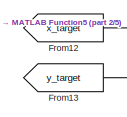
[diagram: root canvas - part 1/5, top left region]
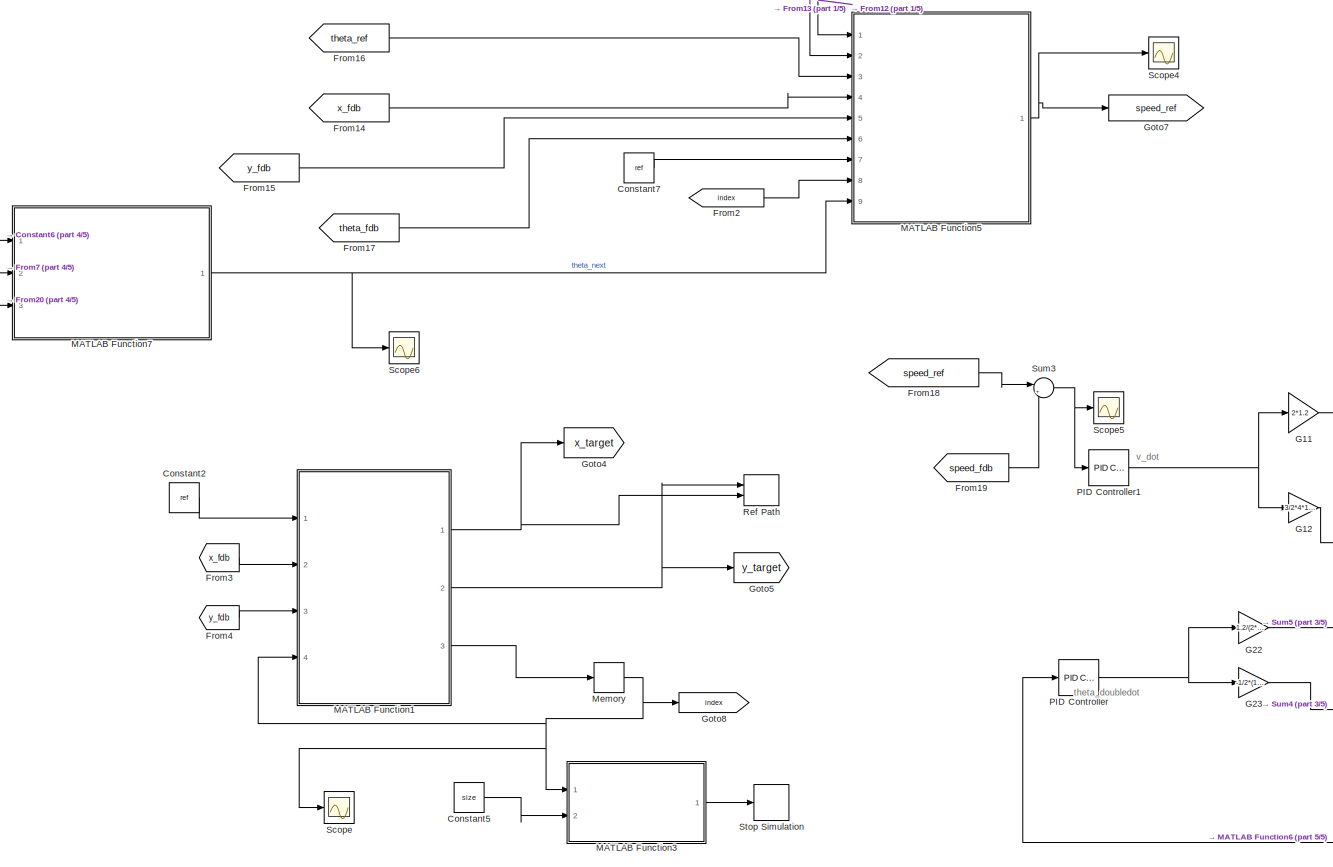
[diagram: root canvas - part 2/5, middle left region]
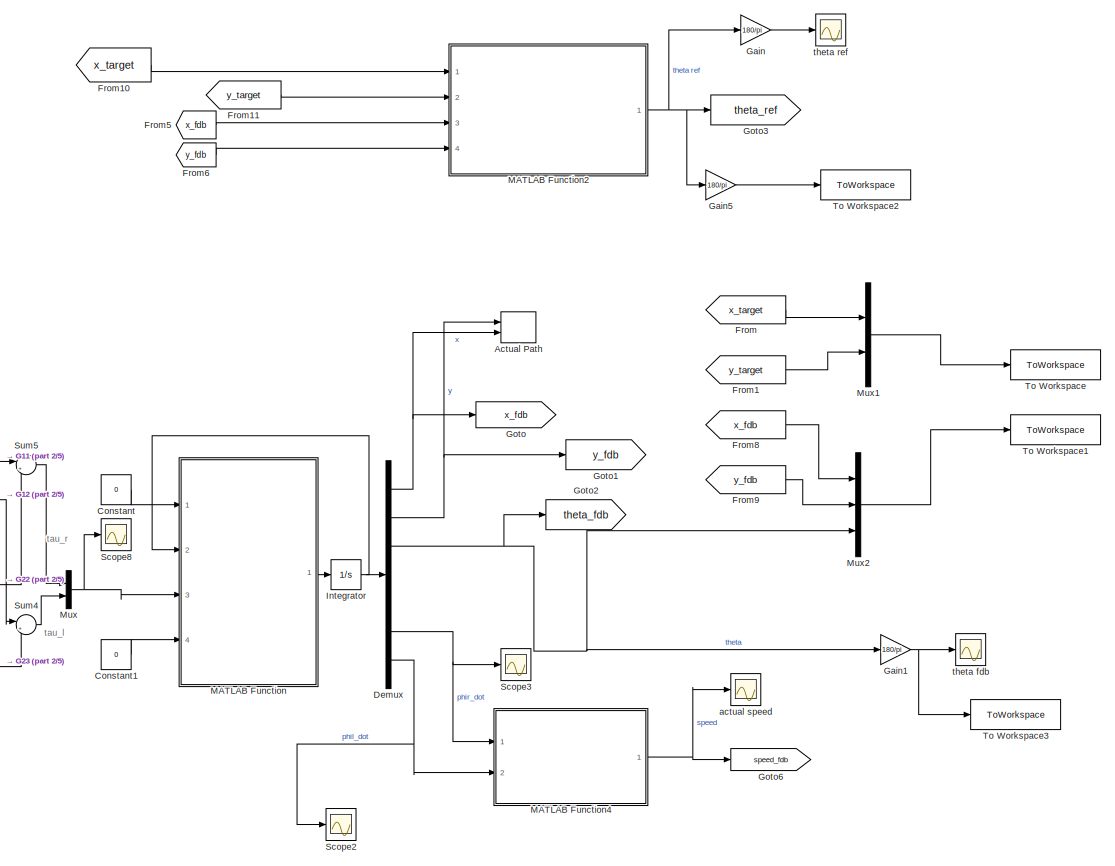
[diagram: root canvas - part 3/5, middle right region]
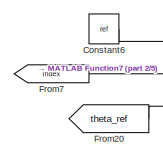
[diagram: root canvas - part 4/5, top left region]
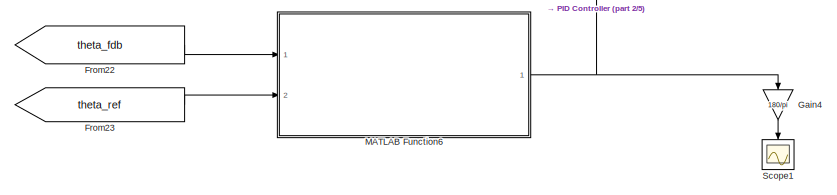
[diagram: root canvas - part 5/5, bottom center region]
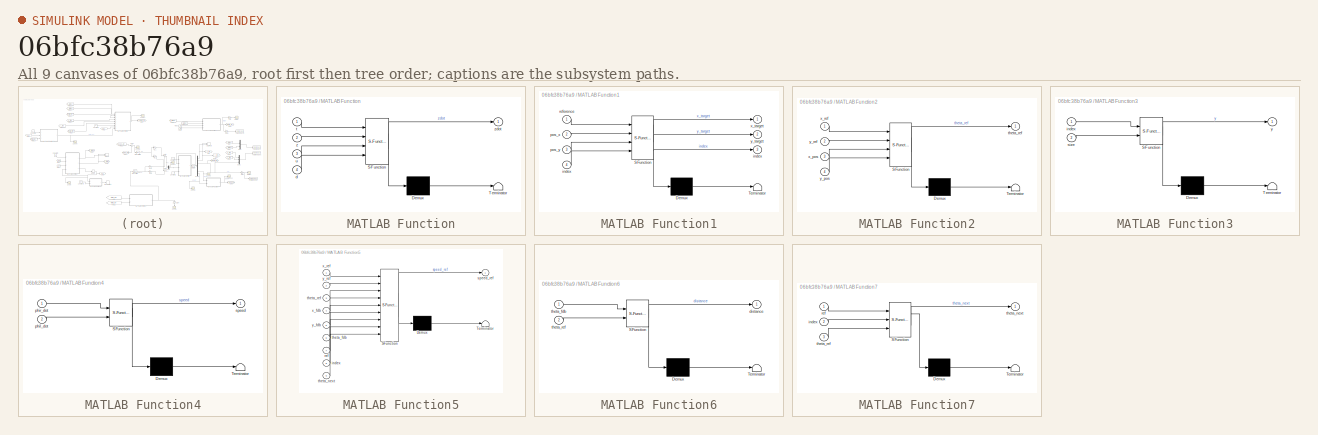
[diagram: thumbnail index - all 9 canvases of the model, root first then tree order]
MODEL slx_06bfc38b76a9
KIND model
CONFIG AbsTol = auto
CONFIG EnableMultiTasking = off
CONFIG FixedStep = auto
CONFIG MaxStep = auto
CONFIG MinStep = auto
CONFIG RelTol = 1e-3
CONFIG SampleTimeConstraint = Unconstrained
CONFIG SolverName = VariableStepAuto
CONFIG StartTime = 0.0
CONFIG StopTime = 4000
WORKSPACE source: mxarray member
WORKSPACE index = 1
BLOCK [Record] Actual Path
  CompatibilityTag = XY
  FileSettingsInternal = {"entries":[{"content":{"excelSettings":{"content":{},"type":"Streamout.ExcelSettings"}},"type":"Streamout.FileSettingStorage","uuid":"c3f9fc52-7bca-4768-af39-544f1f75d104"}],"packageUris":["http://schema.mathworks.com/mf0/streamout_blocks/R2020a"],"version":"1.0"}
  Layout = [1 1]
  Ports = [2]
  SignalsInternal = {"entries":[{"content":{"signals":[{"content":{"blockPath":["path_following_PID_v2/Actual Path"],"channel":[],"dimensions":[1],"domain":"path_following_PID_v2/Actual Path","lineColor":"#edb120","plots":[],"port":1,"sid":[""],"signalID":114,"signalName":"y"},"type":"RecordBlkView.Signal","uuid":"2cce7a5e-7ccd-4489-991f-f9e53a61cbc1"},{"content":{"blockPath":["path_following_PID_v2/Actual Path"],"ch...<+411ch>
  VisualizationBindings = {"xyplotplugin":{"info":[{"series":[],"subplotID":1}]}}
BLOCK [Constant] Constant
  Value = 0
BLOCK [Constant] Constant1
  Value = 0
BLOCK [Constant] Constant2
  Value = ref
BLOCK [Constant] Constant5
  Value = size
BLOCK [Constant] Constant6
  Value = ref
BLOCK [Constant] Constant7
  Value = ref
BLOCK [Demux] Demux
  Outputs = 7
  Ports = [1, 7]
BLOCK [From] From
  GotoTag = x_target
BLOCK [From] From1
  GotoTag = y_target
BLOCK [From] From10
  GotoTag = x_target
BLOCK [From] From11
  GotoTag = y_target
BLOCK [From] From12
  GotoTag = x_target
BLOCK [From] From13
  GotoTag = y_target
BLOCK [From] From14
  GotoTag = x_fdb
BLOCK [From] From15
  GotoTag = y_fdb
BLOCK [From] From16
  GotoTag = theta_ref
BLOCK [From] From17
  GotoTag = theta_fdb
BLOCK [From] From18
  GotoTag = speed_ref
BLOCK [From] From19
  GotoTag = speed_fdb
BLOCK [From] From2
  GotoTag = index
BLOCK [From] From20
  GotoTag = theta_ref
BLOCK [From] From22
  GotoTag = theta_fdb
BLOCK [From] From23
  GotoTag = theta_ref
BLOCK [From] From3
  GotoTag = x_fdb
BLOCK [From] From4
  GotoTag = y_fdb
BLOCK [From] From5
  GotoTag = x_fdb
BLOCK [From] From6
  GotoTag = y_fdb
BLOCK [From] From7
  GotoTag = index
BLOCK [From] From8
  GotoTag = x_fdb
BLOCK [From] From9
  GotoTag = y_fdb
BLOCK [Gain] G11
  Gain = 2*1.2
BLOCK [Gain] G12
  Gain = 3/2*4*1.2
BLOCK [Gain] G22
  Gain = 1.2/(2*0.05)
BLOCK [Gain] G23
  Gain = -1/2*(1.2)/0.05
BLOCK [Gain] Gain
  Gain = 180/pi
BLOCK [Gain] Gain1
  Gain = 180/pi
BLOCK [Gain] Gain4
  Gain = 180/pi
  NameLocation = left
BLOCK [Gain] Gain5
  Gain = 180/pi
BLOCK [Goto] Goto
  GotoTag = x_fdb
BLOCK [Goto] Goto1
  GotoTag = y_fdb
BLOCK [Goto] Goto2
  GotoTag = theta_fdb
BLOCK [Goto] Goto3
  GotoTag = theta_ref
BLOCK [Goto] Goto4
  GotoTag = x_target
BLOCK [Goto] Goto5
  GotoTag = y_target
BLOCK [Goto] Goto6
  GotoTag = speed_fdb
BLOCK [Goto] Goto7
  GotoTag = speed_ref
BLOCK [Goto] Goto8
  GotoTag = index
BLOCK [Integrator] Integrator
  InitialCondition = [0;0;0;0;0;0;0]
  Ports = [1, 1]
BLOCK [SubSystem] MATLAB Function
  ErrorFcn = Stateflow.Translate.translate
  PermitHierarchicalResolution = ExplicitOnly
  Ports = [4, 1]
  RequestExecContextInheritance = off
  SFBlockType = MATLAB Function
  TreatAsAtomicUnit = on
BLOCK [Demux] MATLAB Function/ Demux 
  Outputs = 1
  Ports = [1, 1]
BLOCK [S-Function] MATLAB Function/ SFunction 
  EnableBusSupport = on
  FunctionName = sf_sfun
  PortCounts = [4 2]
  Ports = [4, 2]
  SFcnIsStateOwnerBlock = off
  SFunctionDeploymentMode = off
  Tag = Stateflow S-Function 2
BLOCK [Terminator] MATLAB Function/ Terminator 
BLOCK [Inport] MATLAB Function/d
  Port = 4
BLOCK [Inport] MATLAB Function/t
BLOCK [Inport] MATLAB Function/u
  Port = 3
BLOCK [Inport] MATLAB Function/z
  Port = 2
BLOCK [Outport] MATLAB Function/zdot
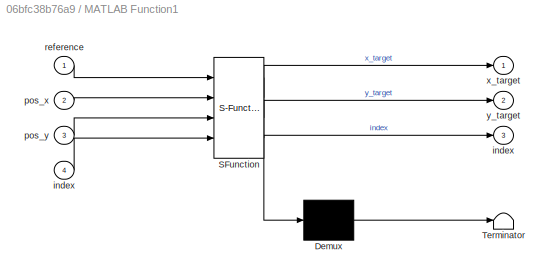
BLOCK [SubSystem] MATLAB Function1
  ErrorFcn = Stateflow.Translate.translate
  PermitHierarchicalResolution = ExplicitOnly
  Ports = [4, 3]
  RequestExecContextInheritance = off
  SFBlockType = MATLAB Function
  TreatAsAtomicUnit = on
BLOCK [Demux] MATLAB Function1/ Demux 
  Outputs = 1
  Ports = [1, 1]
BLOCK [S-Function] MATLAB Function1/ SFunction 
  EnableBusSupport = on
  FunctionName = sf_sfun
  PortCounts = [4 4]
  Ports = [4, 4]
  SFcnIsStateOwnerBlock = off
  SFunctionDeploymentMode = off
  Tag = Stateflow S-Function 1
BLOCK [Terminator] MATLAB Function1/ Terminator 
BLOCK [Outport] MATLAB Function1/index
  Port = 3
BLOCK [Inport] MATLAB Function1/index 
  Port = 4
BLOCK [Inport] MATLAB Function1/pos_x
  Port = 2
BLOCK [Inport] MATLAB Function1/pos_y
  Port = 3
BLOCK [Inport] MATLAB Function1/reference
BLOCK [Outport] MATLAB Function1/x_target
BLOCK [Outport] MATLAB Function1/y_target
  Port = 2
BLOCK [SubSystem] MATLAB Function2
  ErrorFcn = Stateflow.Translate.translate
  PermitHierarchicalResolution = ExplicitOnly
  Ports = [4, 1]
  RequestExecContextInheritance = off
  SFBlockType = MATLAB Function
  TreatAsAtomicUnit = on
BLOCK [Demux] MATLAB Function2/ Demux 
  Outputs = 1
  Ports = [1, 1]
BLOCK [S-Function] MATLAB Function2/ SFunction 
  EnableBusSupport = on
  FunctionName = sf_sfun
  PortCounts = [4 2]
  Ports = [4, 2]
  SFcnIsStateOwnerBlock = off
  SFunctionDeploymentMode = off
  Tag = Stateflow S-Function 3
BLOCK [Terminator] MATLAB Function2/ Terminator 
BLOCK [Outport] MATLAB Function2/theta_ref
BLOCK [Inport] MATLAB Function2/x_pos
  Port = 3
BLOCK [Inport] MATLAB Function2/x_ref
BLOCK [Inport] MATLAB Function2/y_pos
  Port = 4
BLOCK [Inport] MATLAB Function2/y_ref
  Port = 2
BLOCK [SubSystem] MATLAB Function3
  ErrorFcn = Stateflow.Translate.translate
  PermitHierarchicalResolution = ExplicitOnly
  Ports = [2, 1]
  RequestExecContextInheritance = off
  SFBlockType = MATLAB Function
  TreatAsAtomicUnit = on
BLOCK [Demux] MATLAB Function3/ Demux 
  Outputs = 1
  Ports = [1, 1]
BLOCK [S-Function] MATLAB Function3/ SFunction 
  EnableBusSupport = on
  FunctionName = sf_sfun
  PortCounts = [2 2]
  Ports = [2, 2]
  SFcnIsStateOwnerBlock = off
  SFunctionDeploymentMode = off
  Tag = Stateflow S-Function 4
BLOCK [Terminator] MATLAB Function3/ Terminator 
BLOCK [Inport] MATLAB Function3/index
BLOCK [Inport] MATLAB Function3/size
  Port = 2
BLOCK [Outport] MATLAB Function3/y
BLOCK [SubSystem] MATLAB Function4
  ErrorFcn = Stateflow.Translate.translate
  PermitHierarchicalResolution = ExplicitOnly
  Ports = [2, 1]
  RequestExecContextInheritance = off
  SFBlockType = MATLAB Function
  TreatAsAtomicUnit = on
BLOCK [Demux] MATLAB Function4/ Demux 
  Outputs = 1
  Ports = [1, 1]
BLOCK [S-Function] MATLAB Function4/ SFunction 
  EnableBusSupport = on
  FunctionName = sf_sfun
  PortCounts = [2 2]
  Ports = [2, 2]
  SFcnIsStateOwnerBlock = off
  SFunctionDeploymentMode = off
  Tag = Stateflow S-Function 5
BLOCK [Terminator] MATLAB Function4/ Terminator 
BLOCK [Inport] MATLAB Function4/phil_dot
  Port = 2
BLOCK [Inport] MATLAB Function4/phir_dot
BLOCK [Outport] MATLAB Function4/speed
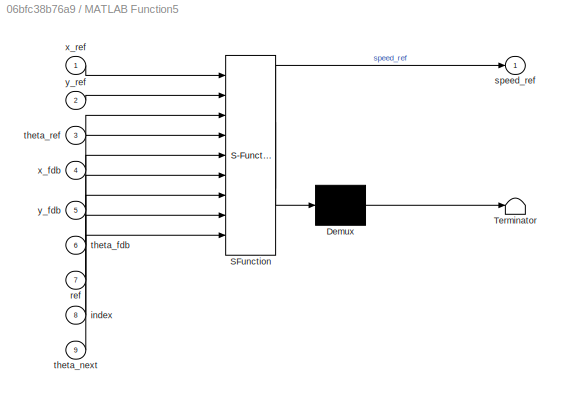
BLOCK [SubSystem] MATLAB Function5
  ErrorFcn = Stateflow.Translate.translate
  PermitHierarchicalResolution = ExplicitOnly
  Ports = [9, 1]
  RequestExecContextInheritance = off
  SFBlockType = MATLAB Function
  TreatAsAtomicUnit = on
BLOCK [Demux] MATLAB Function5/ Demux 
  Outputs = 1
  Ports = [1, 1]
BLOCK [S-Function] MATLAB Function5/ SFunction 
  EnableBusSupport = on
  FunctionName = sf_sfun
  PortCounts = [9 2]
  Ports = [9, 2]
  SFcnIsStateOwnerBlock = off
  SFunctionDeploymentMode = off
  Tag = Stateflow S-Function 6
BLOCK [Terminator] MATLAB Function5/ Terminator 
BLOCK [Inport] MATLAB Function5/index
  Port = 8
BLOCK [Inport] MATLAB Function5/ref
  Port = 7
BLOCK [Outport] MATLAB Function5/speed_ref
BLOCK [Inport] MATLAB Function5/theta_fdb
  Port = 6
BLOCK [Inport] MATLAB Function5/theta_next
  Port = 9
BLOCK [Inport] MATLAB Function5/theta_ref
  Port = 3
BLOCK [Inport] MATLAB Function5/x_fdb
  Port = 4
BLOCK [Inport] MATLAB Function5/x_ref
BLOCK [Inport] MATLAB Function5/y_fdb
  Port = 5
BLOCK [Inport] MATLAB Function5/y_ref
  Port = 2
BLOCK [SubSystem] MATLAB Function6
  ErrorFcn = Stateflow.Translate.translate
  PermitHierarchicalResolution = ExplicitOnly
  Ports = [2, 1]
  RequestExecContextInheritance = off
  SFBlockType = MATLAB Function
  TreatAsAtomicUnit = on
BLOCK [Demux] MATLAB Function6/ Demux 
  Outputs = 1
  Ports = [1, 1]
BLOCK [S-Function] MATLAB Function6/ SFunction 
  EnableBusSupport = on
  FunctionName = sf_sfun
  PortCounts = [2 2]
  Ports = [2, 2]
  SFcnIsStateOwnerBlock = off
  SFunctionDeploymentMode = off
  Tag = Stateflow S-Function 7
BLOCK [Terminator] MATLAB Function6/ Terminator 
BLOCK [Outport] MATLAB Function6/distance
BLOCK [Inport] MATLAB Function6/theta_fdb
BLOCK [Inport] MATLAB Function6/theta_ref
  Port = 2
BLOCK [SubSystem] MATLAB Function7
  ErrorFcn = Stateflow.Translate.translate
  PermitHierarchicalResolution = ExplicitOnly
  Ports = [3, 1]
  RequestExecContextInheritance = off
  SFBlockType = MATLAB Function
  TreatAsAtomicUnit = on
BLOCK [Demux] MATLAB Function7/ Demux 
  Outputs = 1
  Ports = [1, 1]
BLOCK [S-Function] MATLAB Function7/ SFunction 
  EnableBusSupport = on
  FunctionName = sf_sfun
  PortCounts = [3 2]
  Ports = [3, 2]
  SFcnIsStateOwnerBlock = off
  SFunctionDeploymentMode = off
  Tag = Stateflow S-Function 8
BLOCK [Terminator] MATLAB Function7/ Terminator 
BLOCK [Inport] MATLAB Function7/index
  Port = 2
BLOCK [Inport] MATLAB Function7/ref
BLOCK [Outport] MATLAB Function7/theta_next
BLOCK [Inport] MATLAB Function7/theta_ref
  Port = 3
BLOCK [Memory] Memory
  InitialCondition = 1
BLOCK [Mux] Mux
  DisplayOption = bar
  Inputs = 2
  Ports = [2, 1]
BLOCK [Mux] Mux1
  DisplayOption = bar
  Inputs = 2
  Ports = [2, 1]
BLOCK [Mux] Mux2
  DisplayOption = bar
  Inputs = 3
  Ports = [3, 1]
BLOCK [Reference] PID Controller  REF=slpidlib/PID Controller
  Ports = [1, 1]
  SourceBlock = slpidlib/PID Controller
  SourceProductBaseCode = SL
  SourceType = PID 1dof
BLOCK [Reference] PID Controller1  REF=slpidlib/PID Controller
  Ports = [1, 1]
  SourceBlock = slpidlib/PID Controller
  SourceProductBaseCode = SL
  SourceType = PID 1dof
BLOCK [Record] Ref Path
  CompatibilityTag = XY
  FileSettingsInternal = {"entries":[{"content":{"excelSettings":{"content":{},"type":"Streamout.ExcelSettings"}},"type":"Streamout.FileSettingStorage","uuid":"1e7c3f9c-3ccd-4c20-9498-7af259813b34"}],"packageUris":["http://schema.mathworks.com/mf0/streamout_blocks/R2020a"],"version":"1.0"}
  Layout = [1 1]
  Ports = [2]
  SignalsInternal = {"entries":[{"content":{"signals":[{"content":{"blockPath":["path_following_PID_v2/Ref Path"],"channel":[],"dimensions":[1],"domain":"path_following_PID_v2/Ref Path","lineColor":"#77ac30","plots":[],"port":1,"sid":[""],"signalID":122,"signalName":"MATLAB Function1:2"},"type":"RecordBlkView.Signal","uuid":"549e3f88-f954-4038-9d37-77bb5574b0b9"},{"content":{"blockPath":["path_following_PID_v2/Ref Pa...<+433ch>
  VisualizationBindings = {"xyplotplugin":{"info":[{"series":[],"subplotID":1}]}}
BLOCK [Scope] Scope
  Floating = off
  NumInputPorts = 1
  Ports = [1]
  ScopeSpecificationString = Simulink.scopes.TimeScopeBlockCfg('CurrentConfiguration', extmgr.ConfigurationSet(extmgr.Configuration('Core','General UI',true),extmgr.Configuration('Core','Source UI',true),extmgr.Configuration('Sources','WiredSimulink',true,'DataLoggingVariableName','ScopeData1'),extmgr.Configuration('Visuals','Time Domain',true,'SerializedDisplays',{struct('MinYLimReal','-5.125','MaxYLimReal','56.125','YLabelR...<+1455ch>
BLOCK [Scope] Scope1
  Floating = off
  NameLocation = left
  NumInputPorts = 1
  Ports = [1]
  ScopeSpecificationString = Simulink.scopes.TimeScopeBlockCfg('CurrentConfiguration', extmgr.ConfigurationSet(extmgr.Configuration('Core','General UI',true),extmgr.Configuration('Core','Source UI',true),extmgr.Configuration('Sources','WiredSimulink',true,'DataLoggingVariableName','ScopeData2'),extmgr.Configuration('Visuals','Time Domain',true,'SerializedDisplays',{struct('MinYLimReal','-353.19495','MaxYLimReal','-321.68449',...<+1453ch>
BLOCK [Scope] Scope2
  Floating = off
  NumInputPorts = 1
  Ports = [1]
  ScopeSpecificationString = Simulink.scopes.TimeScopeBlockCfg('CurrentConfiguration', extmgr.ConfigurationSet(extmgr.Configuration('Core','General UI',true),extmgr.Configuration('Core','Source UI',true),extmgr.Configuration('Sources','WiredSimulink',true,'DataLoggingVariableName','ScopeData3'),extmgr.Configuration('Visuals','Time Domain',true,'SerializedDisplays',{struct('MinYLimReal','-12.3505','MaxYLimReal','106.63712','YL...<+1430ch>
BLOCK [Scope] Scope3
  Floating = off
  NumInputPorts = 1
  Ports = [1]
  ScopeSpecificationString = Simulink.scopes.TimeScopeBlockCfg('CurrentConfiguration', extmgr.ConfigurationSet(extmgr.Configuration('Core','General UI',true),extmgr.Configuration('Core','Source UI',true),extmgr.Configuration('Sources','WiredSimulink',true,'DataLoggingVariableName','ScopeData4'),extmgr.Configuration('Visuals','Time Domain',true,'SerializedDisplays',{struct('MinYLimReal','-11.86067','MaxYLimReal','106.74603','Y...<+1435ch>
BLOCK [Scope] Scope4
  Floating = off
  NumInputPorts = 1
  Ports = [1]
  ScopeSpecificationString = Simulink.scopes.TimeScopeBlockCfg('CurrentConfiguration', extmgr.ConfigurationSet(extmgr.Configuration('Core','General UI',true),extmgr.Configuration('Core','Source UI',true),extmgr.Configuration('Sources','WiredSimulink',true,'DataLoggingVariableName','ScopeData1'),extmgr.Configuration('Visuals','Time Domain',true,'SerializedDisplays',{struct('MinYLimReal','-0.0911','MaxYLimReal','0.81993','YLabe...<+1427ch>
BLOCK [Scope] Scope5
  Floating = off
  NumInputPorts = 1
  Ports = [1]
  ScopeSpecificationString = Simulink.scopes.TimeScopeBlockCfg('CurrentConfiguration', extmgr.ConfigurationSet(extmgr.Configuration('Core','General UI',true),extmgr.Configuration('Core','Source UI',true),extmgr.Configuration('Sources','WiredSimulink',true,'DataLoggingVariableName','ScopeData2'),extmgr.Configuration('Visuals','Time Domain',true,'SerializedDisplays',{struct('MinYLimReal','-4.86555','MaxYLimReal','2.03746','YLab...<+1388ch>
BLOCK [Scope] Scope6
  Floating = off
  NumInputPorts = 1
  Ports = [1]
  ScopeSpecificationString = Simulink.scopes.TimeScopeBlockCfg('CurrentConfiguration', extmgr.ConfigurationSet(extmgr.Configuration('Core','General UI',true),extmgr.Configuration('Core','Source UI',true),extmgr.Configuration('Sources','WiredSimulink',true,'DataLoggingVariableName','ScopeData1'),extmgr.Configuration('Visuals','Time Domain',true,'SerializedDisplays',{struct('MinYLimReal','-0.77883','MaxYLimReal','7.00943','YLab...<+1394ch>
BLOCK [Scope] Scope8
  Floating = off
  NumInputPorts = 1
  Ports = [1]
  ScopeSpecificationString = Simulink.scopes.TimeScopeBlockCfg('CurrentConfiguration', extmgr.ConfigurationSet(extmgr.Configuration('Core','General UI',true),extmgr.Configuration('Core','Source UI',true),extmgr.Configuration('Sources','WiredSimulink',true,'DataLoggingVariableName','ScopeData6'),extmgr.Configuration('Visuals','Time Domain',true,'SerializedDisplays',{struct('MinYLimReal','-66.44145','MaxYLimReal','39.4137','YLa...<+1446ch>
BLOCK [Stop] Stop Simulation
BLOCK [Sum] Sum3
  Inputs = |+-
  Ports = [2, 1]
BLOCK [Sum] Sum4
  Inputs = |++
  Ports = [2, 1]
BLOCK [Sum] Sum5
  Inputs = |++
  Ports = [2, 1]
BLOCK [ToWorkspace] To Workspace
  FixptAsFi = on
  MaxDataPoints = inf
  Ports = [1]
  SampleTime = 0.3
  Save2DSignal = 2-D array (concatenate along first dimension)
  VariableName = ref_data
BLOCK [ToWorkspace] To Workspace1
  FixptAsFi = on
  MaxDataPoints = inf
  Ports = [1]
  SampleTime = 0.3
  Save2DSignal = 2-D array (concatenate along first dimension)
  VariableName = fdb_data
BLOCK [ToWorkspace] To Workspace2
  FixptAsFi = on
  MaxDataPoints = inf
  Ports = [1]
  SampleTime = -1
  SaveFormat = Timeseries
  VariableName = theta_ref
BLOCK [ToWorkspace] To Workspace3
  FixptAsFi = on
  MaxDataPoints = inf
  Ports = [1]
  SampleTime = -1
  SaveFormat = Timeseries
  VariableName = theta_fdb
BLOCK [Scope] actual speed
  Floating = off
  NumInputPorts = 1
  Ports = [1]
  ScopeSpecificationString = Simulink.scopes.TimeScopeBlockCfg('CurrentConfiguration', extmgr.ConfigurationSet(extmgr.Configuration('Core','General UI',true,'FigureColor',[1 1 1]),extmgr.Configuration('Core','Source UI',true),extmgr.Configuration('Sources','WiredSimulink',true,'DataLoggingVariableName','ScopeData2'),extmgr.Configuration('Visuals','Time Domain',true,'SerializedDisplays',{struct('MinYLimReal','-0.13222','MaxYLi...<+1584ch>
BLOCK [Scope] theta fdb
  Floating = off
  NumInputPorts = 1
  Ports = [1]
  ScopeSpecificationString = Simulink.scopes.TimeScopeBlockCfg('CurrentConfiguration', extmgr.ConfigurationSet(extmgr.Configuration('Core','General UI',true,'FigureColor',[1 1 1]),extmgr.Configuration('Core','Source UI',true),extmgr.Configuration('Sources','WiredSimulink',true,'DataLoggingVariableName','ScopeData1'),extmgr.Configuration('Visuals','Time Domain',true,'SerializedDisplays',{struct('MinYLimReal','-159.20418','MaxY...<+1540ch>
BLOCK [Scope] theta ref
  Floating = off
  NumInputPorts = 1
  Ports = [1]
  ScopeSpecificationString = Simulink.scopes.TimeScopeBlockCfg('CurrentConfiguration', extmgr.ConfigurationSet(extmgr.Configuration('Core','General UI',true,'FigureColor',[1 1 1]),extmgr.Configuration('Core','Source UI',true),extmgr.Configuration('Sources','WiredSimulink',true,'DataLoggingVariableName','ScopeData1'),extmgr.Configuration('Visuals','Time Domain',true,'SerializedDisplays',{struct('MinYLimReal','-44.40453','MaxYL...<+1589ch>
ANNOTATION (root): tau_l
ANNOTATION (root): tau_r
ANNOTATION (root): theta_doubledot
ANNOTATION (root): v_dot
LINE Constant1:1 -> MATLAB Function:4
LINE Constant2:1 -> MATLAB Function1:1
LINE Constant5:1 -> MATLAB Function3:2
LINE Constant6:1 -> MATLAB Function7:1
LINE Constant7:1 -> MATLAB Function5:7
LINE Constant:1 -> MATLAB Function:1
NET Demux:1 -> Actual Path:2, Goto:1
NET Demux:2 -> Actual Path:1, Goto1:1
NET Demux:3 -> Gain1:1, Goto2:1, Mux2:3
NET Demux:6 -> MATLAB Function4:1, Scope3:1
NET Demux:7 -> MATLAB Function4:2, Scope2:1
LINE From10:1 -> MATLAB Function2:1
LINE From11:1 -> MATLAB Function2:2
LINE From12:1 -> MATLAB Function5:1
LINE From13:1 -> MATLAB Function5:2
LINE From14:1 -> MATLAB Function5:4
LINE From15:1 -> MATLAB Function5:5
LINE From16:1 -> MATLAB Function5:3
LINE From17:1 -> MATLAB Function5:6
LINE From18:1 -> Sum3:1
LINE From19:1 -> Sum3:2
LINE From1:1 -> Mux1:2
LINE From20:1 -> MATLAB Function7:3
LINE From22:1 -> MATLAB Function6:1
LINE From23:1 -> MATLAB Function6:2
LINE From2:1 -> MATLAB Function5:8
LINE From3:1 -> MATLAB Function1:2
LINE From4:1 -> MATLAB Function1:3
LINE From5:1 -> MATLAB Function2:3
LINE From6:1 -> MATLAB Function2:4
LINE From7:1 -> MATLAB Function7:2
LINE From8:1 -> Mux2:1
LINE From9:1 -> Mux2:2
LINE From:1 -> Mux1:1
LINE G11:1 -> Sum5:1
LINE G12:1 -> Sum4:1
LINE G22:1 -> Sum5:2
LINE G23:1 -> Sum4:2
NET Gain1:1 -> To Workspace3:1, theta fdb:1
LINE Gain4:1 -> Scope1:1
LINE Gain5:1 -> To Workspace2:1
LINE Gain:1 -> theta ref:1
NET Integrator:1 -> Demux:1, MATLAB Function:2
NET MATLAB Function1:1 -> Goto4:1, Ref Path:2
NET MATLAB Function1:2 -> Goto5:1, Ref Path:1
LINE MATLAB Function1:3 -> Memory:1
NET MATLAB Function2:1 -> Gain5:1, Gain:1, Goto3:1
LINE MATLAB Function3:1 -> Stop Simulation:1
NET MATLAB Function4:1 -> Goto6:1, actual speed:1
NET MATLAB Function5:1 -> Goto7:1, Scope4:1
NET MATLAB Function6:1 -> Gain4:1, PID Controller:1
NET MATLAB Function7:1 -> MATLAB Function5:9, Scope6:1
LINE MATLAB Function:1 -> Integrator:1
NET Memory:1 -> Goto8:1, MATLAB Function1:4, MATLAB Function3:1, Scope:1
LINE Mux1:1 -> To Workspace:1
LINE Mux2:1 -> To Workspace1:1
NET Mux:1 -> MATLAB Function:3, Scope8:1
NET PID Controller1:1 -> G11:1, G12:1
NET PID Controller:1 -> G22:1, G23:1
NET Sum3:1 -> PID Controller1:1, Scope5:1
LINE Sum4:1 -> Mux:2
LINE Sum5:1 -> Mux:1
note: NET lines group one-source signal fan-out (src -> all destinations, sorted); 1:1 wires keep LINE
CHART MATLAB Function1 states=1 transitions=1
  STATE_LABEL 'eML_blk_kernel()'
  STATE_LABEL 'SCRIPT:\nfunction [x_target, y_target, index] = target_to_follow(reference, pos_x, pos_y,index)\n\ncurrent_target_x = reference(index,1);\ncurrent_target_y = reference(index,2);\n\ndistance = sqrt((current_target_x - pos_x)^2+(current_target_y - pos_y)^2);\n\nif distance <= 0.3\n    index= index + 1;\nelse\n    index = index;\nend\n\n\nx_target = reference(index,1);\ny_target = reference(index,2);\n\n\nend'
CHART MATLAB Function states=1 transitions=1
  STATE_LABEL 'eML_blk_kernel()'
  STATE_LABEL 'SCRIPT:\nfunction zdot=robot_dyn_model(t,z,u,d)\n\n%% Read parameters, states and inputs\n\n% Parameters\n% Ic      =       th(1,1);     %\n% Iw      =       th(2,1);     % \n% d       =       th(3,1);     % \n% mw      =       th(4,1);     % \n% mc      =       th(5,1);     % \n% Im      =       th(6,1);     % \n% R       =       th(7,1);     % \n% L       =       th(8,1);     % \n\n Ic      =       1;     %\n I...<+1844ch>'
CHART MATLAB Function2 states=1 transitions=1
  STATE_LABEL 'eML_blk_kernel()'
  STATE_LABEL 'SCRIPT:\nfunction theta_ref = direction (x_ref, y_ref, x_pos, y_pos)\n\nif (x_pos >= x_ref && abs(y_pos-y_ref)<=10^-3)\n    theta_ref = pi;\nelseif (abs(x_pos-x_ref)<=10^-3 && y_pos <= y_ref )\n    theta_ref = pi/2;\nelseif (x_pos < x_ref && abs(y_pos-y_ref)<=10^-3)\n    theta_ref = 0;\nelseif (abs(x_pos-x_ref)<=10^-3 && y_pos > y_ref )\n    theta_ref = 3*pi/2;\nelseif (x_pos<x_ref && y_pos<y_ref)\n    theta_...<+318ch>'
CHART MATLAB Function3 states=1 transitions=1
  STATE_LABEL 'eML_blk_kernel()'
  STATE_LABEL 'SCRIPT:\nfunction y = stop_simulation(index, size)\n\nif (index == size)\n    y = 1;\nelse \n    y=0;\n\nend\n'
CHART MATLAB Function4 states=1 transitions=1
  STATE_LABEL 'eML_blk_kernel()'
  STATE_LABEL 'SCRIPT:\nfunction speed = compute_speed(phir_dot, phil_dot)\n\nspeed = ((phir_dot*0.025)+(phil_dot*0.025))/2;\n\n'
CHART MATLAB Function5 states=1 transitions=1
  STATE_LABEL 'eML_blk_kernel()'
  STATE_LABEL 'SCRIPT:\nfunction speed_ref = speed_ref_function(x_ref, y_ref, theta_ref, x_fdb, y_fdb, theta_fdb, ref, index, theta_next)\n\nif index < length(ref)\n    x_next = ref(index+1,1);\n    y_next = ref(index+1,2);\n    \n    distance_curr = sqrt((x_ref-x_fdb)^2+(y_ref-y_fdb)^2);\n    distance_next = sqrt((x_next-x_fdb)^2+(y_next-y_fdb)^2);\n    \n    diff_curr = rem(theta_ref-theta_fdb, 2*pi);\n    diff_next = re...<+294ch>'
CHART MATLAB Function6 states=1 transitions=1
  STATE_LABEL 'eML_blk_kernel()'
  STATE_LABEL 'SCRIPT:\nfunction distance = fcn(theta_fdb,theta_ref)\n\ndistance = rem((theta_ref - theta_fdb),2*pi);\nif (distance < -pi)\n    distance = (distance + 2*pi);\nelseif (distance > pi)\n    distance = (distance - 2*pi);\n\nend\n'
CHART MATLAB Function7 states=1 transitions=1
  STATE_LABEL 'eML_blk_kernel()'
  STATE_LABEL 'SCRIPT:\nfunction theta_next = direction (ref, index, theta_ref)\n\nif index < length(ref)\n    x_pos = ref(index,1);\n    y_pos = ref(index,2);\n    \n    x_ref = ref(index+1,1);\n    y_ref = ref(index+1,2);\n    \n    if (x_pos >= x_ref && abs(y_pos-y_ref)<=10^-3)\n        theta_next = pi;\n    elseif (abs(x_pos-x_ref)<=10^-3 && y_pos <= y_ref )\n        theta_next = pi/2;\n    elseif (x_pos < x_ref && abs(y_...<+568ch>'
CHART  states=0 transitions=0
CHART  states=0 transitions=0
CHART  states=0 transitions=0
CHART  states=0 transitions=0
CHART  states=0 transitions=0
CHART  states=0 transitions=0
CHART  states=0 transitions=0
CHART  states=0 transitions=0
